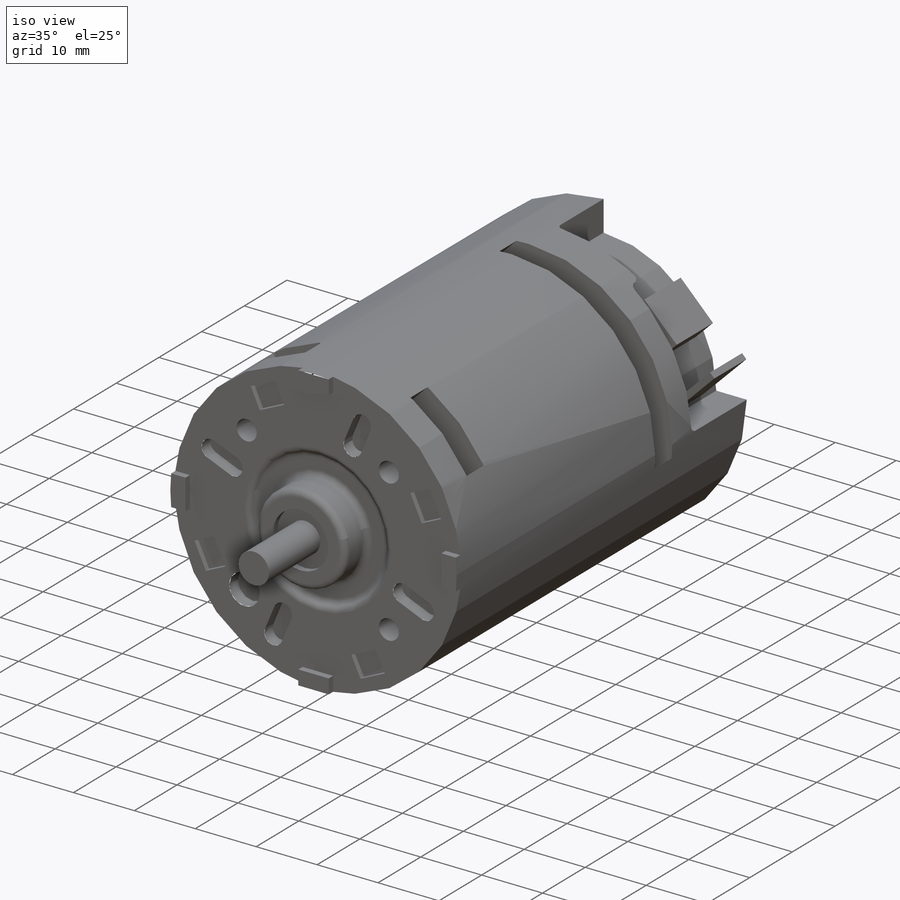
[diagram: iso view]
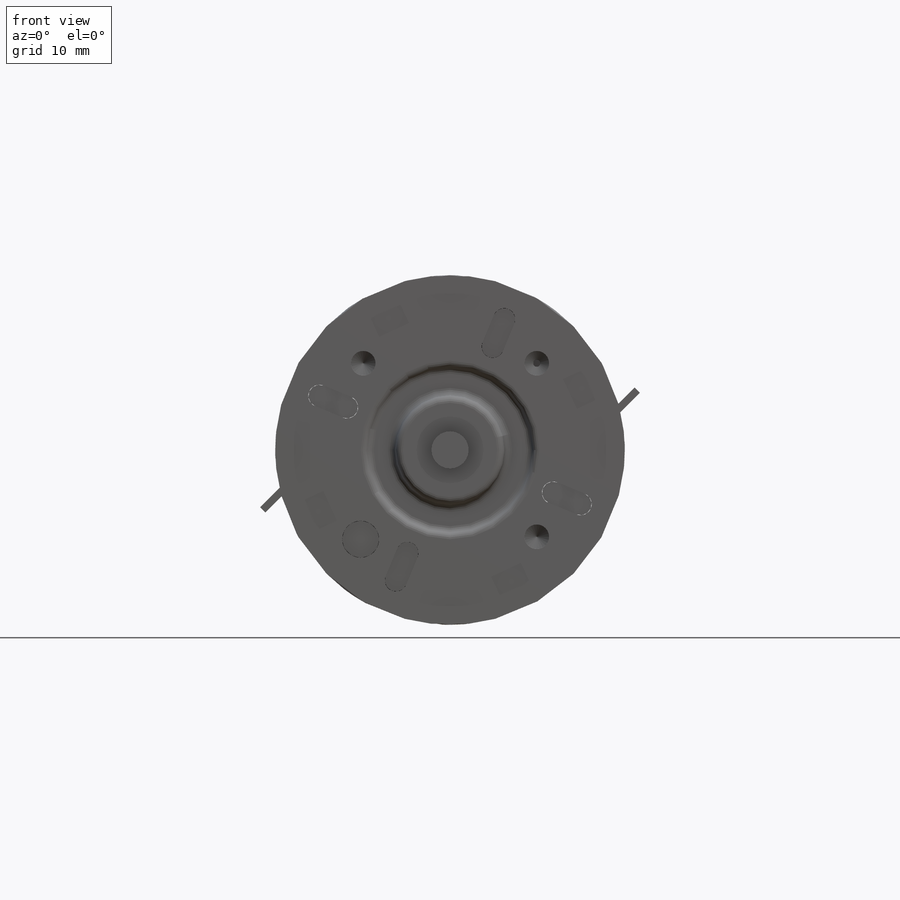
[diagram: front view]
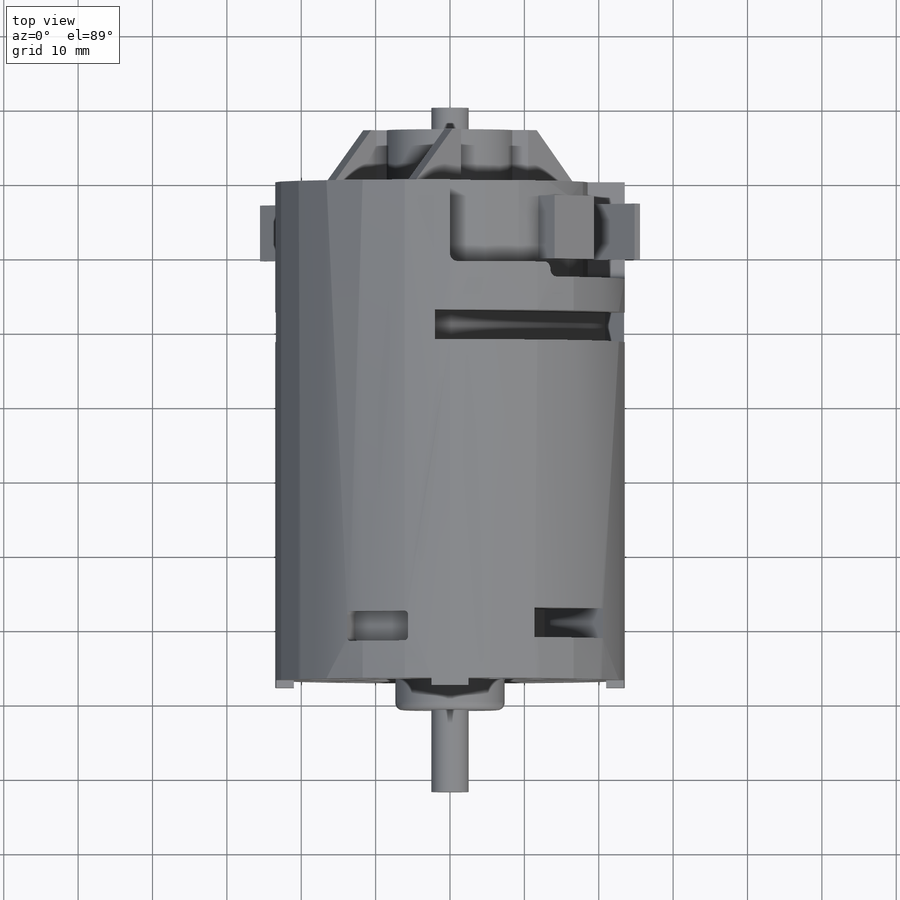
[diagram: top view]
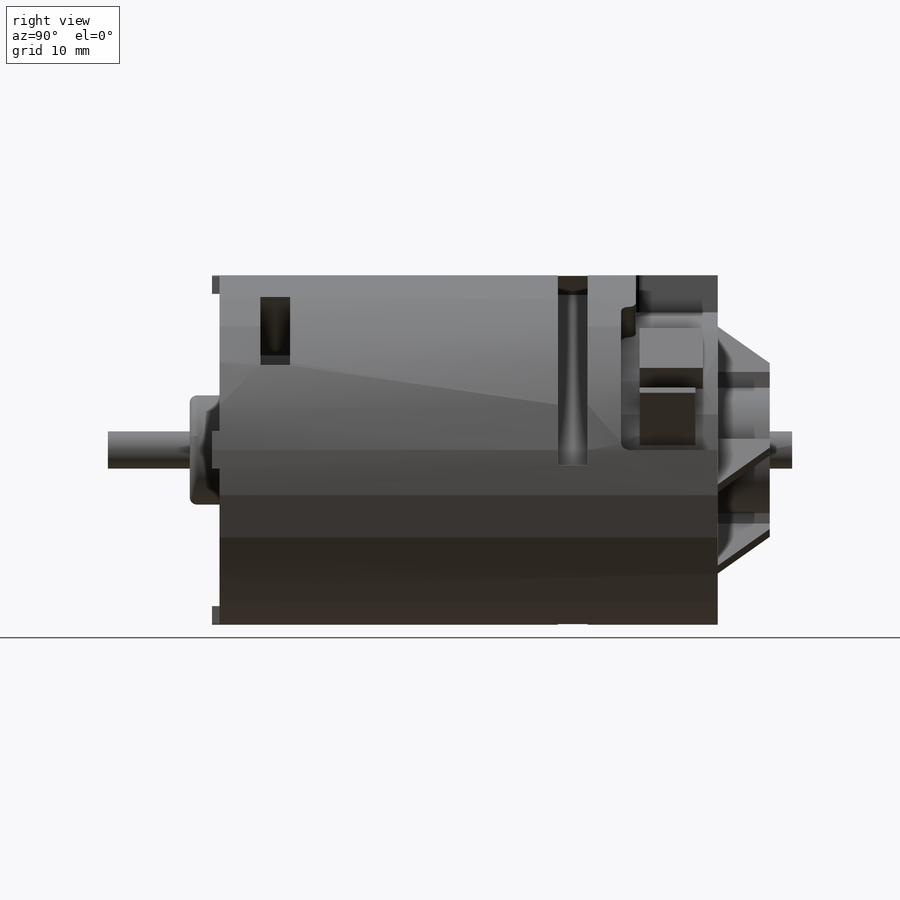
[diagram: right view]
SOLIDWORKS PART (.sldprt)
format: sldprt  version: not decoded by parser v0  size: 809,472 bytes
history: native  units: mm
features: sketch x24, cut_extrude x13, extrude x9, plane x5, pattern_circular x3, fillet x3, material x1, hole x1, thread x1 (+9 scaffold rows collapsed)
feature tree (69):
  scaffold x9  (default folders/planes/origin — collapsed)
  material  "Material <not specified>"
  plane  "Frontal"
  plane  "Superior"
  plane  "Direito"
  sketch  "Sketch1"  dims[D1=47.0mm]
  extrude  "Extrude1"  Depth=67mm
  sketch  "Sketch2"  dims[c1.D1=2.5mm c1.D2=~2.985537mm c2.D2=270.0deg c3.D2=2.5mm c3.D3=21.0mm]
  extrude  "Extrude2"  Depth=1mm
  sketch  "Sketch3"  dims[c1.D1=~17.947148mm c2.D1=25.0deg c2.D2=4.4mm c2.D3=~2.668501mm c3.D3=2.2deg c3.D4=3.5mm c3.D5=21.3mm c3.D6=~3.154511mm c4.D6=~179.328014deg c4.D3=2.2mm]
  cut_extrude  "Cut-Extrude1"  Depth=0.8mm
  sketch  "Sketch4"  dims[c1.D2=~2.812555mm c1.D3=3.0mm c1.D4=3.0mm c1.D1=~26.360935mm c2.D1=22.5deg c2.D2=3.0mm c2.D3=4.0mm c2.D4=19.0mm c2.D5=1.5mm]
  cut_extrude  "Cut-Extrude2"  Depth=2mm
  pattern_circular  "CirPattern2"  Count=4 Angle=360deg
  sketch  "Sketch5"  dims[c1.D2=5.0mm c1.D1=~19.032798mm c2.D1=45.0deg c2.D2=17.0mm]
  cut_extrude  "Cut-Extrude3"  Depth=2mm
  hole  "M4x0.7 Tapped Hole1"  Diameter=3.3mm Depth=4.8mm
  sketch  "3DSketch1"  dims[c1.D1=~19.50777mm c2.D1=~48.85868deg c2.D2=45.0deg c3.D2=~18.304139mm c3.D3=16.5mm c4.D2=~69.419385mm c4.D1=~25.467691mm c5.D1=45.0deg c5.D2=~17.019618mm c5.D3=16.5mm c6.D2=16.5mm]
  sketch  "Sketch6"  dims[hole-wizard template sketch: 47 standard entries collapsed; hole parameters kept: c15.Tap Drill Depth=4.8mm c15.D3=~14.816244mm c15.Drill Angle=118.0deg]
  thread  "Hole Thread1"  Diameter=2.7mm  [1 undecoded]
  pattern_circular  "CirPattern3"  Count=4 Angle=360deg
  sketch  "Sketch7"  dims[D1=~6.104874mm]
  cut_extrude  "Cut-Extrude4"  Depth=1mm
  fillet  "Fillet1"  Radius=1mm
  sketch  "Sketch8"  dims[D1=~7.052442mm]
  extrude  "Extrude3"  Depth=5mm
  fillet  "Fillet2"  Radius=1mm
  sketch  "Sketch9"  dims[D1=~3.961587mm]
  cut_extrude  "Cut-Extrude5"  Depth=1mm
  sketch  "Sketch10"  dims[D1=~1.649521mm]
  extrude  "Extrude4"  Depth=12mm
  plane  "Plane1"
  sketch  "Sketch11"  dims[c1.D4=0.5mm c1.D1=~7.813214mm c2.D1=90.0deg c2.D2=19.0mm c3.D1=9.0mm c3.D2=4.5mm c3.D3=4.0mm c3.D5=5.0mm]
  cut_extrude  "Cut-Extrude6"  Depth=3mm
  plane  "Plane2"
  sketch  "Sketch12"  dims[D1=13.0mm D2=6.5mm D3=4.0mm D4=5.5mm D5=36.0mm D6=18.0mm D7=4.0mm D8=36.0mm]
  cut_extrude  "Cut-Extrude7"  Depth=12mm
  sketch  "Sketch13"  dims[D1=~19.493106mm]
  cut_extrude  "Cut-Extrude8"  Depth=11mm
  sketch  "Sketch14"  dims[D1=13.5mm]
  cut_extrude  "Cut-Extrude9"  Depth=2mm
  fillet  "Fillet3"  Radius=1mm
  sketch  "Sketch15"  dims[D1=~7.228366mm]
  extrude  "Extrude5"  Depth=7mm
  sketch  "Sketch16"  dims[c1.D1=~27.999138mm c2.D1=45.0deg c2.D2=1.5mm c2.D3=15.0mm c2.D4=1.5mm]
  extrude  "Extrude6"  Depth=7mm
  sketch  "Sketch17"  dims[c1.D1=~9.899495mm c2.D1=45.0deg c3.D1=~9.899495mm c4.D1=45.0deg]
  cut_extrude  "Cut-Extrude12"  [1 undecoded]
  sketch  "Sketch18"  dims[c1.D1=7.0mm c2.D1=45.0deg]
  cut_extrude  "Cut-Extrude13"  [1 undecoded]
  sketch  "Sketch19"  dims[D1=15.0mm D2=2.5mm D3=8.5mm D4=7.5mm]
  extrude  "Extrude7"  Depth=7mm
  sketch  "Sketch20"
  cut_extrude  "Cut-Extrude14"  Depth=2mm
  sketch  "Sketch21"  dims[D1=7.5mm D2=1.0mm D3=4.0mm D4=2.5mm]
  extrude  "Extrude8"  Depth=12mm
  sketch  "Sketch22"  dims[D1=~6.255252mm]
  cut_extrude  "Cut-Extrude15"  Depth=12mm
  sketch  "Sketch23"  dims[D1=~2.583997mm]
  extrude  "Extrude9"  Depth=3mm
  pattern_circular  "CirPattern10"  Count=2 Angle=360deg
decode coverage: 51 of 54 modeling features carry decoded parameters
note: ~ marks probable driven/reference dimensions
note: 3 parameter values undecoded
note: suppression state not decoded; provenance and decode notes live in map.json
